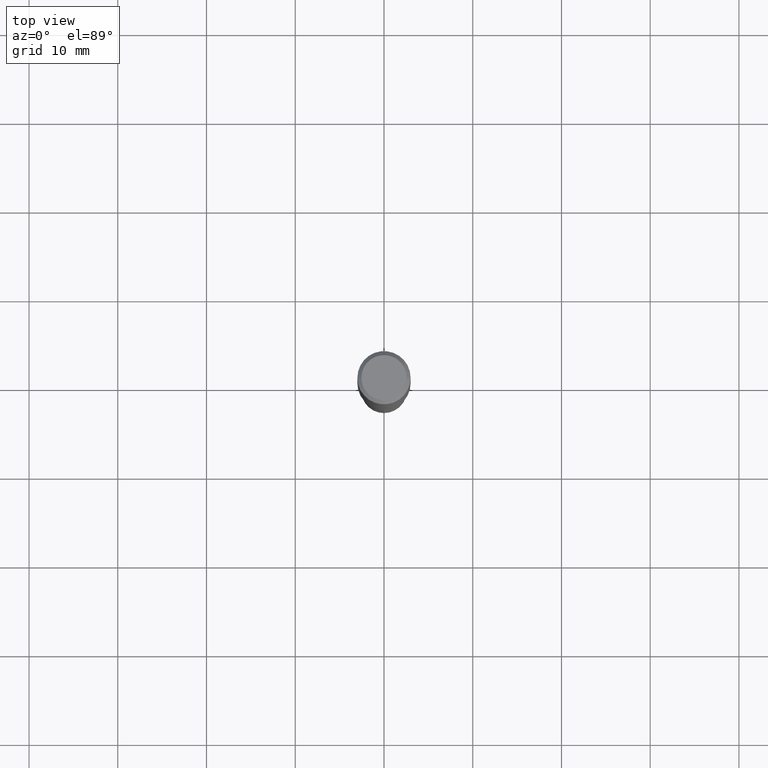
[diagram: clean part render]
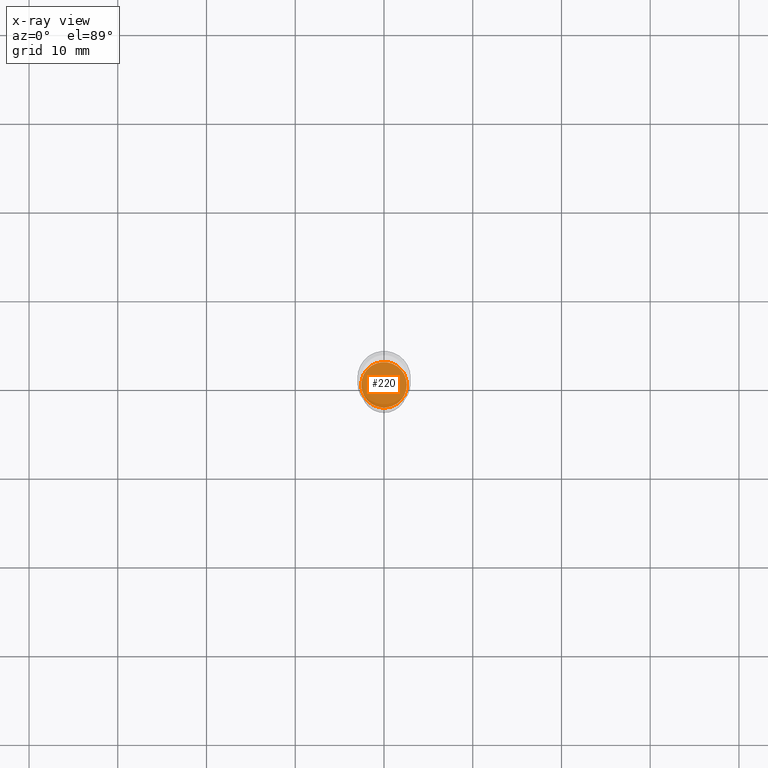
[diagram: x-ray — body ghosted, one internal face saturated and labeled with its STEP entity id]
A machine part, top view, then the same camera in x-ray: the body is ghosted and one INTERNAL B-rep face — a face not visible from any outside direction — is saturated and labeled: STEP entity #220.
In plain terms, the highlighted planar face has unit normal (-0, 0, 1).
Its self-contained STEP definition (entity closure, byte-faithful):
#10 = EDGE_LOOP ( 'NONE', ( #206, #467 ) ) ;
#18 = EDGE_CURVE ( 'NONE', #395, #176, #359, .T. ) ;
#28 = CARTESIAN_POINT ( 'NONE',  ( 4.524117291442502816E-29, -6.459240476859820373E-15, -1.850000000000000311 ) ) ;
#59 = DIRECTION ( 'NONE',  ( 1.000000000000000000, -6.982962677686269077E-15, 0.000000000000000000 ) ) ;
#65 = CARTESIAN_POINT ( 'NONE',  ( 0.1010500000000000009, -7.164868855440018148E-15, -1.850000000000000311 ) ) ;
#143 = FACE_OUTER_BOUND ( 'NONE', #10, .T. ) ;
#153 = CARTESIAN_POINT ( 'NONE',  ( 4.524117291442502816E-29, -6.459240476859820373E-15, -1.850000000000000311 ) ) ;
#176 = VERTEX_POINT ( 'NONE', #65 ) ;
#178 = DIRECTION ( 'NONE',  ( -2.438088387897960049E-29, 3.491481338843145188E-15, 1.000000000000000000 ) ) ;
#182 = CIRCLE ( 'NONE', #324, 0.1010500000000000009 ) ;
#185 = PLANE ( 'NONE',  #209 ) ;
#206 = ORIENTED_EDGE ( 'NONE', *, *, #389, .F. ) ;
#209 = AXIS2_PLACEMENT_3D ( 'NONE', #28, #178, #253 ) ;
#220 = ADVANCED_FACE ( 'NONE', ( #143 ), #185, .F. ) ;
#222 = DIRECTION ( 'NONE',  ( -2.445468806185136597E-29, 3.491481338843145583E-15, 1.000000000000000000 ) ) ;
#253 = DIRECTION ( 'NONE',  ( 1.000000000000000000, -6.982962677686265922E-15, 4.876176775795935793E-29 ) ) ;
#276 = CARTESIAN_POINT ( 'NONE',  ( 4.524117291442502816E-29, -6.459240476859820373E-15, -1.850000000000000311 ) ) ;
#324 = AXIS2_PLACEMENT_3D ( 'NONE', #153, #487, #339 ) ;
#339 = DIRECTION ( 'NONE',  ( 1.000000000000000000, -6.982962677686269077E-15, 0.000000000000000000 ) ) ;
#359 = CIRCLE ( 'NONE', #424, 0.1010500000000000009 ) ;
#389 = EDGE_CURVE ( 'NONE', #176, #395, #182, .T. ) ;
#395 = VERTEX_POINT ( 'NONE', #414 ) ;
#414 = CARTESIAN_POINT ( 'NONE',  ( -0.1010500000000000009, -5.738587815200127336E-15, -1.850000000000000311 ) ) ;
#424 = AXIS2_PLACEMENT_3D ( 'NONE', #276, #222, #59 ) ;
#467 = ORIENTED_EDGE ( 'NONE', *, *, #18, .F. ) ;
#487 = DIRECTION ( 'NONE',  ( -2.445468806185136597E-29, 3.491481338843145583E-15, 1.000000000000000000 ) ) ;